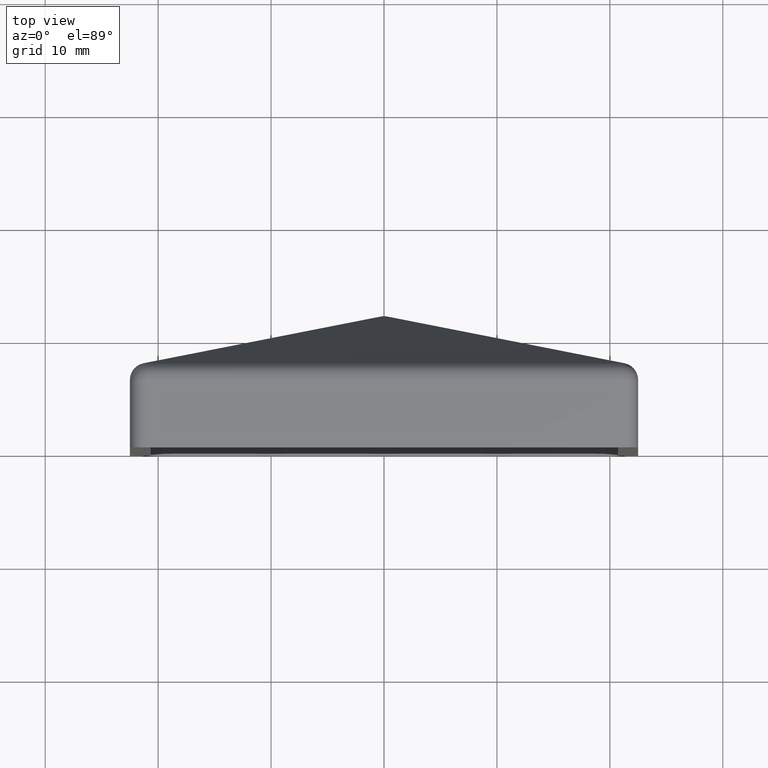
[diagram: clean part render]
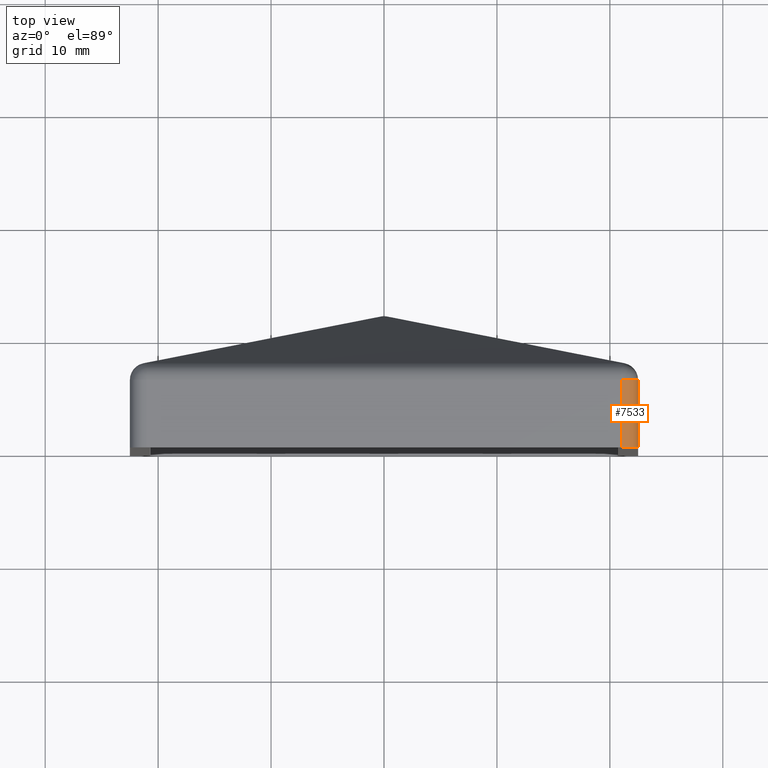
[diagram: same view with one face highlighted and labeled with its STEP entity id]
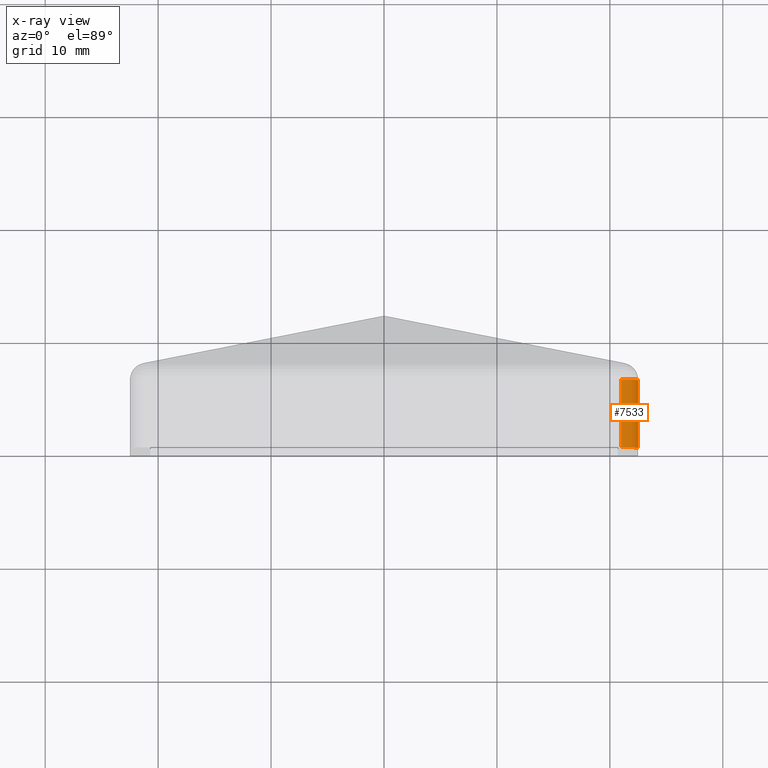
[diagram: x-ray of the same camera — body ghosted, the highlighted face saturated]
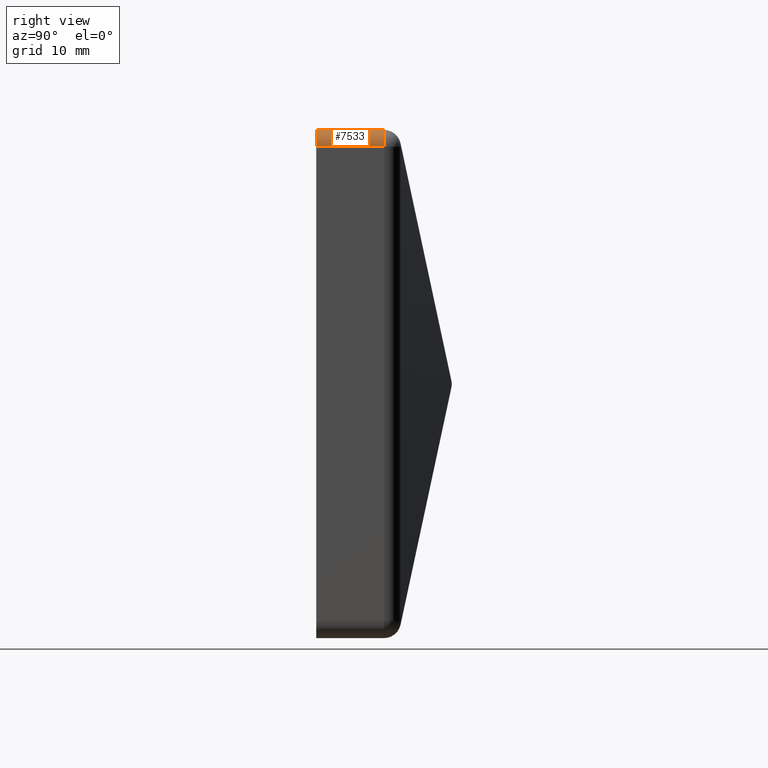
[diagram: same view with one face highlighted and labeled with its STEP entity id]
A machine part, top view. The second image highlights one B-rep face of the part: STEP entity #7533.
The next image is the same camera in x-ray: the body ghosted, the highlighted face saturated — about 0% of this face is hidden behind the body in this view.
A second angle (right view) of the same face is appended — the face is thin or edge-on in the first view.
In plain terms, the highlighted cylindrical surface (edge-blend (fillet) strip) has radius 1.5 mm, axis along (0, -1, 0).
Its self-contained STEP definition (entity closure, byte-faithful):
#182 = CIRCLE ( 'NONE', #15827, 1.500000000000001300 ) ;
#947 = ORIENTED_EDGE ( 'NONE', *, *, #10048, .F. ) ;
#1080 = ORIENTED_EDGE ( 'NONE', *, *, #14211, .F. ) ;
#1177 = LINE ( 'NONE', #3044, #7367 ) ;
#3044 = CARTESIAN_POINT ( 'NONE',  ( 22.49999999999999300, 12.00000000000000000, 20.99999999999997900 ) ) ;
#3978 = DIRECTION ( 'NONE',  ( 0.0000000000000000000, 0.0000000000000000000, -1.000000000000000000 ) ) ;
#5262 = CIRCLE ( 'NONE', #13741, 1.500000000000001300 ) ;
#5597 = CARTESIAN_POINT ( 'NONE',  ( 20.99999999999997900, 0.0000000000000000000, 22.49999999999997900 ) ) ;
#6051 = CARTESIAN_POINT ( 'NONE',  ( 22.49999999999999300, 6.000000000000000900, 20.99999999999997900 ) ) ;
#6643 = EDGE_CURVE ( 'NONE', #16096, #15339, #5262, .T. ) ;
#6840 = CARTESIAN_POINT ( 'NONE',  ( 20.99999999999998900, 6.000000000000000900, 22.49999999999998900 ) ) ;
#6947 = DIRECTION ( 'NONE',  ( 0.0000000000000000000, -1.000000000000000000, 0.0000000000000000000 ) ) ;
#7058 = CARTESIAN_POINT ( 'NONE',  ( 20.99999999999998900, 12.00000000000000000, 22.49999999999997900 ) ) ;
#7213 = LINE ( 'NONE', #7058, #16389 ) ;
#7367 = VECTOR ( 'NONE', #6947, 1000.000000000000000 ) ;
#7533 = ADVANCED_FACE ( 'NONE', ( #10633 ), #16422, .T. ) ;
#8109 = CARTESIAN_POINT ( 'NONE',  ( 22.49999999999999300, 0.0000000000000000000, 20.99999999999997900 ) ) ;
#8331 = VERTEX_POINT ( 'NONE', #5597 ) ;
#9063 = CARTESIAN_POINT ( 'NONE',  ( 20.99999999999998900, 6.000000000000000000, 20.99999999999997900 ) ) ;
#9076 = ORIENTED_EDGE ( 'NONE', *, *, #6643, .T. ) ;
#9644 = CARTESIAN_POINT ( 'NONE',  ( 20.99999999999998900, 0.0000000000000000000, 20.99999999999997900 ) ) ;
#10048 = EDGE_CURVE ( 'NONE', #8331, #15339, #7213, .T. ) ;
#10144 = AXIS2_PLACEMENT_3D ( 'NONE', #12329, #11080, #12389 ) ;
#10527 = EDGE_CURVE ( 'NONE', #11262, #8331, #182, .T. ) ;
#10633 = FACE_OUTER_BOUND ( 'NONE', #11925, .T. ) ;
#11080 = DIRECTION ( 'NONE',  ( 0.0000000000000000000, -1.000000000000000000, 0.0000000000000000000 ) ) ;
#11262 = VERTEX_POINT ( 'NONE', #8109 ) ;
#11925 = EDGE_LOOP ( 'NONE', ( #1080, #9076, #947, #15278 ) ) ;
#12329 = CARTESIAN_POINT ( 'NONE',  ( 20.99999999999998900, 12.00000000000000000, 20.99999999999997900 ) ) ;
#12389 = DIRECTION ( 'NONE',  ( 0.0000000000000000000, 0.0000000000000000000, -1.000000000000000000 ) ) ;
#12871 = DIRECTION ( 'NONE',  ( 0.0000000000000000000, -1.000000000000000000, 0.0000000000000000000 ) ) ;
#13514 = DIRECTION ( 'NONE',  ( 0.0000000000000000000, 0.0000000000000000000, 1.000000000000000000 ) ) ;
#13741 = AXIS2_PLACEMENT_3D ( 'NONE', #9063, #12871, #3978 ) ;
#14211 = EDGE_CURVE ( 'NONE', #16096, #11262, #1177, .T. ) ;
#14913 = DIRECTION ( 'NONE',  ( -0.0000000000000000000, 1.000000000000000000, -0.0000000000000000000 ) ) ;
#15278 = ORIENTED_EDGE ( 'NONE', *, *, #10527, .F. ) ;
#15339 = VERTEX_POINT ( 'NONE', #6840 ) ;
#15827 = AXIS2_PLACEMENT_3D ( 'NONE', #9644, #16071, #13514 ) ;
#16071 = DIRECTION ( 'NONE',  ( -0.0000000000000000000, -1.000000000000000000, -0.0000000000000000000 ) ) ;
#16096 = VERTEX_POINT ( 'NONE', #6051 ) ;
#16389 = VECTOR ( 'NONE', #14913, 1000.000000000000000 ) ;
#16422 = CYLINDRICAL_SURFACE ( 'NONE', #10144, 1.500000000000001300 ) ;